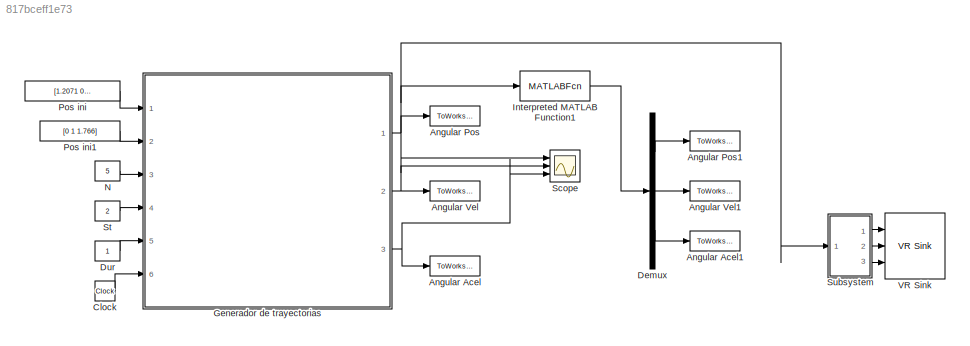
MODEL slx_817bceff1e73
KIND model
CONFIG AbsTol = auto
CONFIG EnableMultiTasking = off
CONFIG FixedStep = 0.001
CONFIG MaxStep = 0.001
CONFIG MinStep = auto
CONFIG RelTol = 1e-3
CONFIG SampleTimeConstraint = Unconstrained
CONFIG Solver = VariableStepAuto
CONFIG SolverName = VariableStepAuto
CONFIG StartTime = 0.0
CONFIG StopTime = 5
BLOCK [ToWorkspace] Angular Acel
  FixptAsFi = on
  MaxDataPoints = inf
  Ports = [1]
  SampleTime = -1
  Save2DSignal = 3-D array (concatenate along third dimension)
  VariableName = qdd
BLOCK [ToWorkspace] Angular Acel1
  FixptAsFi = on
  MaxDataPoints = inf
  Ports = [1]
  SampleTime = -1
  Save2DSignal = 3-D array (concatenate along third dimension)
  VariableName = zr
BLOCK [ToWorkspace] Angular Pos
  FixptAsFi = on
  MaxDataPoints = inf
  Ports = [1]
  SampleTime = -1
  Save2DSignal = 3-D array (concatenate along third dimension)
  VariableName = q
BLOCK [ToWorkspace] Angular Pos1
  FixptAsFi = on
  MaxDataPoints = inf
  Ports = [1]
  SampleTime = -1
  Save2DSignal = 3-D array (concatenate along third dimension)
  VariableName = xr
BLOCK [ToWorkspace] Angular Vel
  FixptAsFi = on
  MaxDataPoints = inf
  Ports = [1]
  SampleTime = -1
  Save2DSignal = 3-D array (concatenate along third dimension)
  VariableName = qd
BLOCK [ToWorkspace] Angular Vel1
  FixptAsFi = on
  MaxDataPoints = inf
  Ports = [1]
  SampleTime = -1
  Save2DSignal = 3-D array (concatenate along third dimension)
  VariableName = yr
BLOCK [Clock] Clock
BLOCK [Demux] Demux
  DisplayOption = bar
  Outputs = 3
  Ports = [1, 3]
BLOCK [Constant] Dur
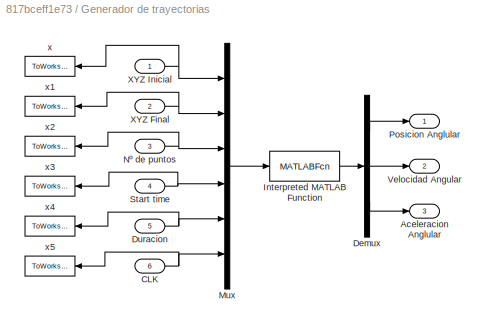
BLOCK [SubSystem] Generador de trayectorias
  Ports = [6, 3]
  RequestExecContextInheritance = off
BLOCK [Outport] Generador de trayectorias/ Posicion Anglular
  IconDisplay = Port number
  PortDimensions = 3
BLOCK [Outport] Generador de trayectorias/Aceleracion Anglular
  IconDisplay = Port number
  Port = 3
  PortDimensions = 3
BLOCK [Inport] Generador de trayectorias/CLK
  IconDisplay = Port number
  Port = 6
BLOCK [Demux] Generador de trayectorias/Demux
  DisplayOption = bar
  Outputs = 3
  Ports = [1, 3]
BLOCK [Inport] Generador de trayectorias/Duracion
  IconDisplay = Port number
  Port = 5
BLOCK [MATLABFcn] Generador de trayectorias/Interpreted MATLAB Function
  MATLABFcn = genTrayectoria5
  Ports = [1, 1]
BLOCK [Mux] Generador de trayectorias/Mux
  DisplayOption = bar
  Inputs = 6
  Ports = [6, 1]
BLOCK [Inport] Generador de trayectorias/Nº de puntos
  IconDisplay = Port number
  Port = 3
BLOCK [Inport] Generador de trayectorias/Start time
  IconDisplay = Port number
  Port = 4
BLOCK [Outport] Generador de trayectorias/Velocidad Angular
  IconDisplay = Port number
  Port = 2
  PortDimensions = 3
BLOCK [Inport] Generador de trayectorias/XYZ Final
  IconDisplay = Port number
  Port = 2
BLOCK [Inport] Generador de trayectorias/XYZ Inicial
  IconDisplay = Port number
BLOCK [ToWorkspace] Generador de trayectorias/x
  FixptAsFi = on
  MaxDataPoints = inf
  Ports = [1]
  SampleTime = -1
  Save2DSignal = 3-D array (concatenate along third dimension)
  VariableName = xyz_ini
BLOCK [ToWorkspace] Generador de trayectorias/x1
  FixptAsFi = on
  MaxDataPoints = inf
  Ports = [1]
  SampleTime = -1
  Save2DSignal = 3-D array (concatenate along third dimension)
  VariableName = xyz_fin
BLOCK [ToWorkspace] Generador de trayectorias/x2
  FixptAsFi = on
  MaxDataPoints = inf
  Ports = [1]
  SampleTime = -1
  Save2DSignal = 3-D array (concatenate along third dimension)
  VariableName = N
BLOCK [ToWorkspace] Generador de trayectorias/x3
  FixptAsFi = on
  MaxDataPoints = inf
  Ports = [1]
  SampleTime = -1
  Save2DSignal = 3-D array (concatenate along third dimension)
  VariableName = sT
BLOCK [ToWorkspace] Generador de trayectorias/x4
  FixptAsFi = on
  MaxDataPoints = inf
  Ports = [1]
  SampleTime = -1
  Save2DSignal = 3-D array (concatenate along third dimension)
  VariableName = tT
BLOCK [ToWorkspace] Generador de trayectorias/x5
  FixptAsFi = on
  MaxDataPoints = inf
  Ports = [1]
  SampleTime = -1
  Save2DSignal = 3-D array (concatenate along third dimension)
  VariableName = t
BLOCK [MATLABFcn] Interpreted MATLAB Function1
  MATLABFcn = mcd
  OutputDimensions = 3
  Ports = [1, 1]
BLOCK [Constant] N
  Value = 5
BLOCK [Constant] Pos ini
  Value = [1.2071   0   1.6071]
BLOCK [Constant] Pos ini1
  Value = [0 1 1.766]
BLOCK [Scope] Scope
  Floating = off
  NumInputPorts = 3
  Ports = [3]
  ScopeSpecificationString = Simulink.scopes.TimeScopeBlockCfg('CurrentConfiguration', extmgr.ConfigurationSet(extmgr.Configuration('Core','General UI',true),extmgr.Configuration('Core','Source UI',true),extmgr.Configuration('Sources','WiredSimulink',true),extmgr.Configuration('Visuals','Time Domain',true,'SerializedDisplays',{struct('MinYLimReal','-1.98051','MaxYLimReal','1.96539','YLabelReal','','MinYLimMag','0.00000','MaxY...<+2937ch>
BLOCK [Constant] St
  Value = 2
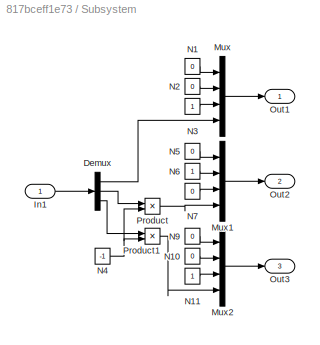
BLOCK [SubSystem] Subsystem
  Ports = [1, 3]
  RequestExecContextInheritance = off
BLOCK [Demux] Subsystem/Demux
  DisplayOption = bar
  Outputs = 3
  Ports = [1, 3]
BLOCK [Inport] Subsystem/In1
  IconDisplay = Port number
BLOCK [Mux] Subsystem/Mux
  DisplayOption = bar
  Ports = [4, 1]
BLOCK [Mux] Subsystem/Mux1
  DisplayOption = bar
  Ports = [4, 1]
BLOCK [Mux] Subsystem/Mux2
  DisplayOption = bar
  Ports = [4, 1]
BLOCK [Constant] Subsystem/N1
  Value = 0
BLOCK [Constant] Subsystem/N10
  Value = 0
BLOCK [Constant] Subsystem/N11
BLOCK [Constant] Subsystem/N2
  Value = 0
BLOCK [Constant] Subsystem/N3
BLOCK [Constant] Subsystem/N4
  Value = -1
BLOCK [Constant] Subsystem/N5
  Value = 0
BLOCK [Constant] Subsystem/N6
BLOCK [Constant] Subsystem/N7
  Value = 0
BLOCK [Constant] Subsystem/N9
  Value = 0
BLOCK [Outport] Subsystem/Out1
  IconDisplay = Port number
BLOCK [Outport] Subsystem/Out2
  IconDisplay = Port number
  Port = 2
BLOCK [Outport] Subsystem/Out3
  IconDisplay = Port number
  Port = 3
BLOCK [Product] Subsystem/Product
  InputSameDT = off
  OutDataTypeStr = Inherit: Inherit via internal rule
  Ports = [2, 1]
  RndMeth = Floor
  SaturateOnIntegerOverflow = off
BLOCK [Product] Subsystem/Product1
  InputSameDT = off
  OutDataTypeStr = Inherit: Inherit via internal rule
  Ports = [2, 1]
  RndMeth = Floor
  SaturateOnIntegerOverflow = off
BLOCK [Reference] VR Sink  REF=vrlib/VR Sink
  InstantiateOnLoad = on
  Ports = [3]
  SourceBlock = vrlib/VR Sink
  SourceProductBaseCode = VR
  SourceProductName = Simulink 3D Animation
  SourceType = Virtual Reality Sink
LINE Clock:1 -> Generador de trayectorias:6
LINE Demux:1 -> Angular Pos1:1
LINE Demux:2 -> Angular Vel1:1
LINE Demux:3 -> Angular Acel1:1
LINE Dur:1 -> Generador de trayectorias:5
NET Generador de trayectorias/CLK:1 -> Generador de trayectorias/Mux:6, Generador de trayectorias/x5:1
LINE Generador de trayectorias/Demux:1 -> Generador de trayectorias/ Posicion Anglular:1
LINE Generador de trayectorias/Demux:2 -> Generador de trayectorias/Velocidad Angular:1
LINE Generador de trayectorias/Demux:3 -> Generador de trayectorias/Aceleracion Anglular:1
NET Generador de trayectorias/Duracion:1 -> Generador de trayectorias/Mux:5, Generador de trayectorias/x4:1
LINE Generador de trayectorias/Interpreted MATLAB Function:1 -> Generador de trayectorias/Demux:1
LINE Generador de trayectorias/Mux:1 -> Generador de trayectorias/Interpreted MATLAB Function:1
NET Generador de trayectorias/Nº de puntos:1 -> Generador de trayectorias/Mux:3, Generador de trayectorias/x2:1
NET Generador de trayectorias/Start time:1 -> Generador de trayectorias/Mux:4, Generador de trayectorias/x3:1
NET Generador de trayectorias/XYZ Final:1 -> Generador de trayectorias/Mux:2, Generador de trayectorias/x1:1
NET Generador de trayectorias/XYZ Inicial:1 -> Generador de trayectorias/Mux:1, Generador de trayectorias/x:1
NET Generador de trayectorias:1 -> Angular Pos:1, Interpreted MATLAB Function1:1, Scope:1, Subsystem:1
NET Generador de trayectorias:2 -> Angular Vel:1, Scope:2
NET Generador de trayectorias:3 -> Angular Acel:1, Scope:3
LINE Interpreted MATLAB Function1:1 -> Demux:1
LINE N:1 -> Generador de trayectorias:3
LINE Pos ini1:1 -> Generador de trayectorias:2
LINE Pos ini:1 -> Generador de trayectorias:1
LINE St:1 -> Generador de trayectorias:4
LINE Subsystem/Demux:1 -> Subsystem/Mux:4
LINE Subsystem/Demux:2 -> Subsystem/Product:1
LINE Subsystem/Demux:3 -> Subsystem/Product1:1
LINE Subsystem/In1:1 -> Subsystem/Demux:1
LINE Subsystem/Mux1:1 -> Subsystem/Out2:1
LINE Subsystem/Mux2:1 -> Subsystem/Out3:1
LINE Subsystem/Mux:1 -> Subsystem/Out1:1
LINE Subsystem/N10:1 -> Subsystem/Mux2:2
LINE Subsystem/N11:1 -> Subsystem/Mux2:3
LINE Subsystem/N1:1 -> Subsystem/Mux:1
LINE Subsystem/N2:1 -> Subsystem/Mux:2
LINE Subsystem/N3:1 -> Subsystem/Mux:3
NET Subsystem/N4:1 -> Subsystem/Product1:2, Subsystem/Product:2
LINE Subsystem/N5:1 -> Subsystem/Mux1:1
LINE Subsystem/N6:1 -> Subsystem/Mux1:2
LINE Subsystem/N7:1 -> Subsystem/Mux1:3
LINE Subsystem/N9:1 -> Subsystem/Mux2:1
LINE Subsystem/Product1:1 -> Subsystem/Mux2:4
LINE Subsystem/Product:1 -> Subsystem/Mux1:4
LINE Subsystem:1 -> VR Sink:1
LINE Subsystem:2 -> VR Sink:2
LINE Subsystem:3 -> VR Sink:3
note: NET lines group one-source signal fan-out (src -> all destinations, sorted); 1:1 wires keep LINE
